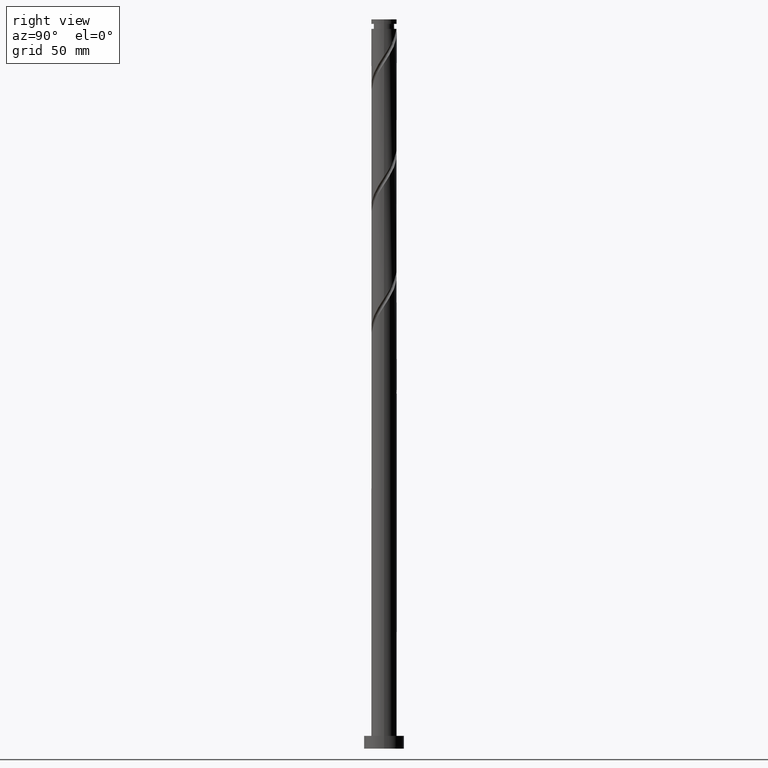
[diagram: clean part render]
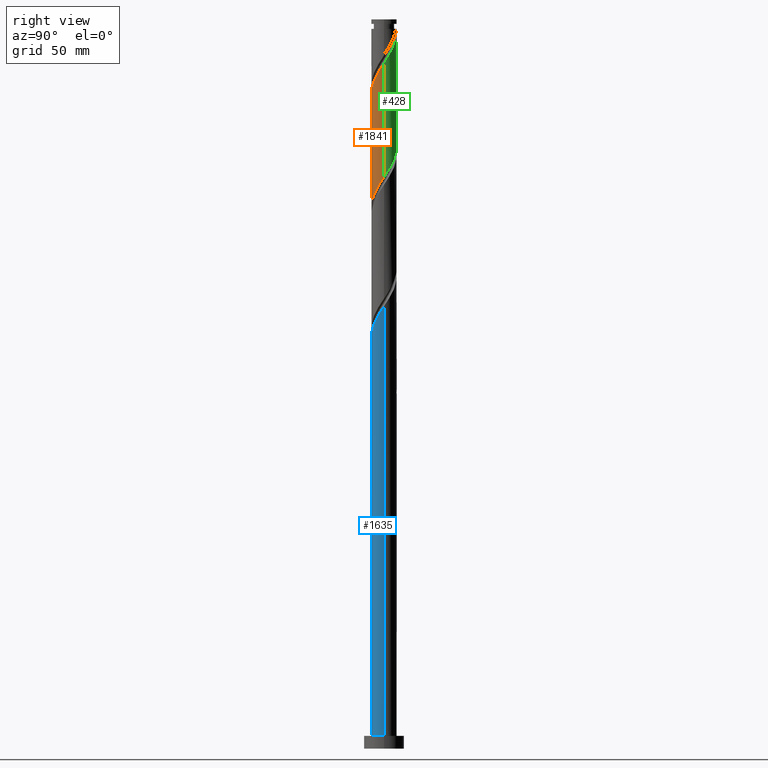
[diagram: same view with three faces highlighted in distinct colors, each labeled with its STEP entity id]
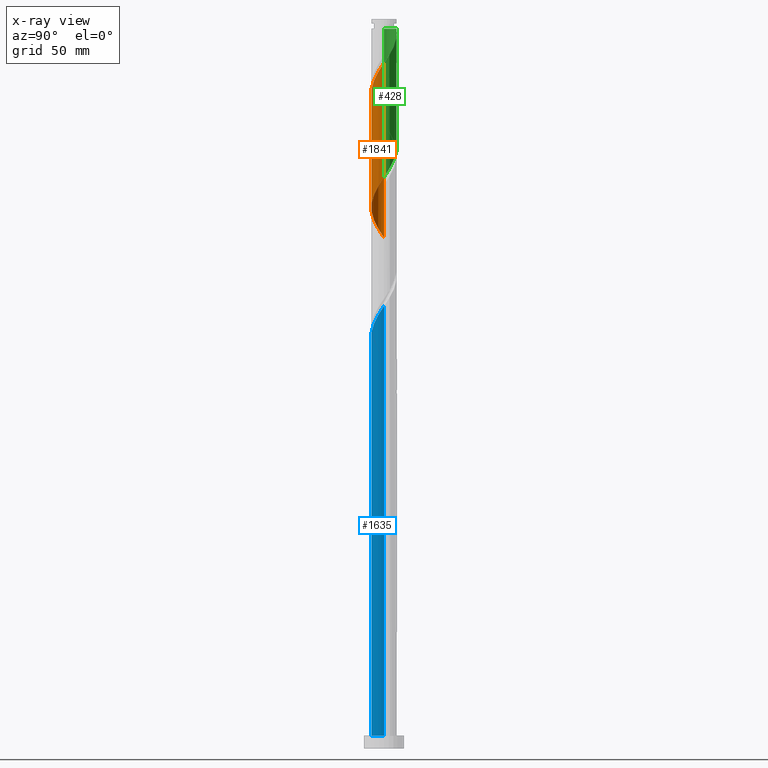
[diagram: x-ray of the same camera — body ghosted, the three highlighted faces saturated]
A machine part, right view with three faces highlighted in distinct colors.
The next image is the same camera in x-ray (body ghosted, the three faces saturated) — at least one of them is partly hidden behind the body in this view.
Their STEP definitions:

[orange] entity #1841 — the highlighted cylindrical surface (edge-blend (fillet) strip) has radius 7 mm, axis along (-0, -0, -1).
#34 =( BOUNDED_CURVE ( )  B_SPLINE_CURVE ( 2, ( #1617, #46, #814, #233, #854, #394, #703, #678, #1754, #1934, #1152, #1771, #1002, #1425, #1886, #1435, #1625, #1282, #655, #1262, #371, #350, #956, #1579, #667, #1271, #1911, #1899, #1464, #1475, #1955, #1791, #263 ),
 .UNSPECIFIED., .F., .T. ) 
 B_SPLINE_CURVE_WITH_KNOTS ( ( 3, 2, 2, 2, 2, 2, 2, 2, 2, 2, 2, 2, 2, 2, 2, 2, 3 ),
 ( 0.5545286012773116280, 0.5583333333333333481, 0.5666666666666666519, 0.5749999999999999556, 0.5833333333333333703, 0.5916666666666666741, 0.5999999999999999778, 0.6083333333333332815, 0.6166666666666666963, 0.6250000000000000000, 0.6333333333333333037, 0.6416666666666667185, 0.6500000000000000222, 0.6583333333333333259, 0.6666666666666666297, 0.6750000000000000444, 0.6795286012773112949 ),
 .UNSPECIFIED. ) 
 CURVE ( )  GEOMETRIC_REPRESENTATION_ITEM ( )  RATIONAL_B_SPLINE_CURVE ( ( 0.9066196499552172661, 0.9068171577856301013, 0.9090909090909288226, 0.9041108139711772074, 0.9090909090909288226, 0.9041108139711772074, 0.9090909090909288226, 0.9041108139711772074, 0.9090909090909288226, 0.9041108139711772074, 0.9090909090909288226, 0.9041108139711772074, 0.9090909090909288226, 0.9041108139711772074, 0.9090909090909288226, 0.9041108139711772074, 0.9090909090909288226, 0.9041108139711772074, 0.9090909090909288226, 0.9041108139711772074, 0.9090909090909288226, 0.9041108139711772074, 0.9090909090909288226, 0.9041108139711772074, 0.9090909090909288226, 0.9041108139711772074, 0.9090909090909288226, 0.9041108139711772074, 0.9090909090909288226, 0.9041108139711772074, 0.9090909090909288226, 0.9063845652764761507, 0.9066196499552172661 ) ) 
 REPRESENTATION_ITEM ( '' )  );
#46 = CARTESIAN_POINT ( 'NONE',  ( 6.999999999999999112, -0.3349079950072654799, 313.0497907622954017 ) ) ;
#57 = CARTESIAN_POINT ( 'NONE',  ( -7.000000000000000888, 0.000000000000000000, 400.0000000000000000 ) ) ;
#89 = LINE ( 'NONE', #57, #1718 ) ;
#97 = CARTESIAN_POINT ( 'NONE',  ( 7.000000000000012434, -0.3988161621250277955, 375.3685281580985702 ) ) ;
#118 = EDGE_CURVE ( 'NONE', #255, #1946, #89, .T. ) ;
#126 = CARTESIAN_POINT ( 'NONE',  ( 5.159153274858738314, -4.731082062965566770, 368.0995627110045803 ) ) ;
#153 = CARTESIAN_POINT ( 'NONE',  ( -6.968026513106292619, -0.6682862505303550638, 343.6551182665601232 ) ) ;
#180 = DIRECTION ( 'NONE',  ( -0.000000000000000000, -0.000000000000000000, -1.000000000000000000 ) ) ;
#233 = CARTESIAN_POINT ( 'NONE',  ( 6.897786797805721903, -1.400655348501352204, 311.4328960443379515 ) ) ;
#255 = VERTEX_POINT ( 'NONE', #1351 ) ;
#263 = CARTESIAN_POINT ( 'NONE',  ( -7.000000000000002665, 9.178327068288536215E-15, 280.2250059545260683 ) ) ;
#297 = CARTESIAN_POINT ( 'NONE',  ( -3.574630488033860853, -6.063275928678102389, 353.6551182665601800 ) ) ;
#348 = EDGE_CURVE ( 'NONE', #1209, #1946, #34, .T. ) ;
#350 = CARTESIAN_POINT ( 'NONE',  ( -3.463635740372986049, -6.127358776118730255, 291.4328960443378378 ) ) ;
#371 = CARTESIAN_POINT ( 'NONE',  ( -2.788816603122402427, -6.420475212486133287, 292.5440071554490373 ) ) ;
#394 = CARTESIAN_POINT ( 'NONE',  ( 6.455840984887133871, -2.804178184623777437, 309.2106738221157798 ) ) ;
#420 = CARTESIAN_POINT ( 'NONE',  ( -5.244443063986621745, -4.636358155772994927, 350.3217849332267519 ) ) ;
#431 = CARTESIAN_POINT ( 'NONE',  ( 6.030060668729772644, -3.555048288200653328, 370.3217849332268088 ) ) ;
#447 = CARTESIAN_POINT ( 'NONE',  ( -5.731743942366925637, -4.085144978138299798, 349.2106738221157229 ) ) ;
#459 = CARTESIAN_POINT ( 'NONE',  ( -0.06373179489726249480, -6.999709869581691279, 359.2106738221157798 ) ) ;
#488 = DIRECTION ( 'NONE',  ( -0.000000000000000000, -0.000000000000000000, -1.000000000000000000 ) ) ;
#547 = CARTESIAN_POINT ( 'NONE',  ( 7.000000000000012434, -1.524738372907857357E-15, 375.9741194674830922 ) ) ;
#558 = EDGE_CURVE ( 'NONE', #1745, #1209, #673, .T. ) ;
#580 = CARTESIAN_POINT ( 'NONE',  ( -6.897786797805730785, -1.400655348501351316, 344.7662293776713227 ) ) ;
#592 = CARTESIAN_POINT ( 'NONE',  ( 6.403711300393656991, -2.921263373008176512, 371.4328960443378946 ) ) ;
#609 = CARTESIAN_POINT ( 'NONE',  ( -2.235890285154152224, -6.673986271039353824, 355.8773404887822949 ) ) ;
#655 = CARTESIAN_POINT ( 'NONE',  ( -1.392982411949273525, -6.859999999999999432, 294.7662293776712659 ) ) ;
#667 = CARTESIAN_POINT ( 'NONE',  ( -5.159153274858732097, -4.731082062965556112, 288.0995627110045803 ) ) ;
#673 = LINE ( 'NONE', #1255, #1081 ) ;
#678 = CARTESIAN_POINT ( 'NONE',  ( 5.731743942366910538, -4.085144978138298910, 306.9884515998934376 ) ) ;
#679 = ORIENTED_EDGE ( 'NONE', *, *, #118, .T. ) ;
#703 = CARTESIAN_POINT ( 'NONE',  ( 6.093792463627021760, -3.444661581381036175, 308.0995627110046371 ) ) ;
#712 = ORIENTED_EDGE ( 'NONE', *, *, #749, .F. ) ;
#717 = CARTESIAN_POINT ( 'NONE',  ( -7.000000000000002665, 9.178327068288536215E-15, 280.2250059545260683 ) ) ;
#739 = ORIENTED_EDGE ( 'NONE', *, *, #348, .F. ) ;
#743 = CARTESIAN_POINT ( 'NONE',  ( 5.656410037065890961, -4.188833203393128812, 369.2106738221157229 ) ) ;
#749 = EDGE_CURVE ( 'NONE', #255, #1745, #1878, .T. ) ;
#814 = CARTESIAN_POINT ( 'NONE',  ( 6.968026513106281961, -0.6682862505303600598, 312.5440071554491510 ) ) ;
#854 = CARTESIAN_POINT ( 'NONE',  ( 6.676813891346426999, -2.102416766562567485, 310.3217849332268656 ) ) ;
#903 = CARTESIAN_POINT ( 'NONE',  ( -2.905260386594006761, -6.368631099858728994, 354.7662293776713227 ) ) ;
#937 = FACE_OUTER_BOUND ( 'NONE', #1069, .T. ) ;
#956 = CARTESIAN_POINT ( 'NONE',  ( -4.062766126512282305, -5.700344849328362606, 290.3217849332268088 ) ) ;
#1002 = CARTESIAN_POINT ( 'NONE',  ( 2.905260386593998323, -6.368631099858720113, 301.4328960443380083 ) ) ;
#1017 = CARTESIAN_POINT ( 'NONE',  ( 2.113997465871811698, -6.713591648853546090, 362.5440071554491510 ) ) ;
#1054 = CARTESIAN_POINT ( 'NONE',  ( -4.165886336820090463, -5.625423631042894890, 352.5440071554490942 ) ) ;
#1055 = AXIS2_PLACEMENT_3D ( 'NONE', #1717, #180, #1618 ) ;
#1069 = EDGE_LOOP ( 'NONE', ( #1772, #712, #679, #739 ) ) ;
#1081 = VECTOR ( 'NONE', #488, 1000.000000000000000 ) ;
#1152 = CARTESIAN_POINT ( 'NONE',  ( 4.165886336820081581, -5.625423631042891337, 303.6551182665601800 ) ) ;
#1188 = CARTESIAN_POINT ( 'NONE',  ( -6.093792463627035083, -3.444661581381038395, 348.0995627110045803 ) ) ;
#1209 = VERTEX_POINT ( 'NONE', #1576 ) ;
#1213 = CARTESIAN_POINT ( 'NONE',  ( -1.517660616487702452, -6.833498829528129370, 356.9884515998934944 ) ) ;
#1255 = CARTESIAN_POINT ( 'NONE',  ( 7.000000000000000888, 8.572527594031474176E-16, 400.0000000000000000 ) ) ;
#1262 = CARTESIAN_POINT ( 'NONE',  ( -2.113997465871814363, -6.713591648853533655, 293.6551182665601232 ) ) ;
#1271 = CARTESIAN_POINT ( 'NONE',  ( -5.656410037065885632, -4.188833203393120819, 286.9884515998935512 ) ) ;
#1282 = CARTESIAN_POINT ( 'NONE',  ( -0.6719673580267349067, -7.006408351146466984, 295.8773404887823517 ) ) ;
#1307 = CARTESIAN_POINT ( 'NONE',  ( 6.871139651478132215, -1.526020315445858699, 373.6551182665601800 ) ) ;
#1339 = CARTESIAN_POINT ( 'NONE',  ( -4.757142185606320517, -5.187571333407690055, 351.4328960443379515 ) ) ;
#1351 = CARTESIAN_POINT ( 'NONE',  ( -7.000000000000009770, -9.268017560812467488E-16, 342.6407861341497778 ) ) ;
#1357 = CARTESIAN_POINT ( 'NONE',  ( -7.000000000000009770, -9.268017560812467488E-16, 342.6407861341497778 ) ) ;
#1364 = CARTESIAN_POINT ( 'NONE',  ( 7.000000000000012434, -1.524738372907857357E-15, 375.9741194674830922 ) ) ;
#1367 = CARTESIAN_POINT ( 'NONE',  ( -6.676813891346439434, -2.102416766562563044, 345.8773404887824086 ) ) ;
#1423 = DIRECTION ( 'NONE',  ( -0.000000000000000000, -0.000000000000000000, -1.000000000000000000 ) ) ;
#1425 = CARTESIAN_POINT ( 'NONE',  ( 2.235890285154144230, -6.673986271039347606, 300.3217849332268656 ) ) ;
#1435 = CARTESIAN_POINT ( 'NONE',  ( 0.7994309478212480169, -6.993011388016896035, 298.0995627110045803 ) ) ;
#1464 = CARTESIAN_POINT ( 'NONE',  ( -6.637425475935885721, -2.223641844227008946, 283.6551182665601800 ) ) ;
#1468 = CARTESIAN_POINT ( 'NONE',  ( 3.463635740372989602, -6.127358776118742689, 364.7662293776712090 ) ) ;
#1475 = CARTESIAN_POINT ( 'NONE',  ( -6.871139651478124222, -1.526020315445849374, 282.5440071554490942 ) ) ;
#1481 = CARTESIAN_POINT ( 'NONE',  ( 6.954702939942492890, -0.7950515814432469464, 374.7662293776712659 ) ) ;
#1557 = CYLINDRICAL_SURFACE ( 'NONE', #1055, 7.000000000000000888 ) ;
#1576 = CARTESIAN_POINT ( 'NONE',  ( 7.000000000000000888, 7.384517217808689599E-15, 313.5583392878594395 ) ) ;
#1579 = CARTESIAN_POINT ( 'NONE',  ( -4.661896512651579449, -5.273330922537993182, 289.2106738221156661 ) ) ;
#1617 = CARTESIAN_POINT ( 'NONE',  ( 7.000000000000000888, 7.384517217808689599E-15, 313.5583392878594395 ) ) ;
#1618 = DIRECTION ( 'NONE',  ( -1.000000000000000000, 0.000000000000000000, 0.000000000000000000 ) ) ;
#1625 = CARTESIAN_POINT ( 'NONE',  ( 0.06373179489725674940, -6.999709869581680621, 296.9884515998934944 ) ) ;
#1640 = CARTESIAN_POINT ( 'NONE',  ( 4.661896512651583002, -5.273330922538004728, 366.9884515998935512 ) ) ;
#1652 = CARTESIAN_POINT ( 'NONE',  ( 2.788816603122401538, -6.420475212486143946, 363.6551182665601800 ) ) ;
#1684 = CARTESIAN_POINT ( 'NONE',  ( 0.6719673580267300217, -7.006408351146476754, 360.3217849332268656 ) ) ;
#1717 = CARTESIAN_POINT ( 'NONE',  ( 0.000000000000000000, 0.000000000000000000, 400.0000000000000000 ) ) ;
#1718 = VECTOR ( 'NONE', #1423, 1000.000000000000000 ) ;
#1745 = VERTEX_POINT ( 'NONE', #1364 ) ;
#1754 = CARTESIAN_POINT ( 'NONE',  ( 5.244443063986611087, -4.636358155772994039, 305.8773404887824086 ) ) ;
#1771 = CARTESIAN_POINT ( 'NONE',  ( 3.574630488033851972, -6.063275928678096172, 302.5440071554491510 ) ) ;
#1772 = ORIENTED_EDGE ( 'NONE', *, *, #558, .F. ) ;
#1791 = CARTESIAN_POINT ( 'NONE',  ( -7.000000000000000000, -0.3988161621250425615, 280.8305972639106471 ) ) ;
#1798 = CARTESIAN_POINT ( 'NONE',  ( -7.000000000000008882, -0.3349079950072593181, 343.1493346597139293 ) ) ;
#1810 = CARTESIAN_POINT ( 'NONE',  ( 4.062766126512283194, -5.700344849328375041, 365.8773404887822949 ) ) ;
#1837 = CARTESIAN_POINT ( 'NONE',  ( -0.7994309478212519027, -6.993011388016906693, 358.0995627110046371 ) ) ;
#1841 = ADVANCED_FACE ( 'NONE', ( #937 ), #1557, .T. ) ;
#1878 =( BOUNDED_CURVE ( )  B_SPLINE_CURVE ( 2, ( #1357, #1798, #153, #580, #1367, #1998, #1188, #447, #420, #1339, #1054, #297, #903, #609, #1213, #1837, #459, #1684, #1939, #1017, #1652, #1468, #1810, #1640, #126, #743, #431, #592, #1989, #1307, #1481, #97, #547 ),
 .UNSPECIFIED., .F., .T. ) 
 B_SPLINE_CURVE_WITH_KNOTS ( ( 3, 2, 2, 2, 2, 2, 2, 2, 2, 2, 2, 2, 2, 2, 2, 2, 3 ),
 ( 0.5545286012773116280, 0.5583333333333333481, 0.5666666666666666519, 0.5749999999999999556, 0.5833333333333332593, 0.5916666666666666741, 0.5999999999999999778, 0.6083333333333333925, 0.6166666666666666963, 0.6250000000000000000, 0.6333333333333333037, 0.6416666666666666075, 0.6500000000000000222, 0.6583333333333333259, 0.6666666666666667407, 0.6750000000000000444, 0.6795286012773115170 ),
 .UNSPECIFIED. ) 
 CURVE ( )  GEOMETRIC_REPRESENTATION_ITEM ( )  RATIONAL_B_SPLINE_CURVE ( ( 0.9066196499552231503, 0.9068171577856358745, 0.9090909090909347068, 0.9041108139711830916, 0.9090909090909347068, 0.9041108139711830916, 0.9090909090909347068, 0.9041108139711830916, 0.9090909090909347068, 0.9041108139711830916, 0.9090909090909347068, 0.9041108139711830916, 0.9090909090909347068, 0.9041108139711830916, 0.9090909090909347068, 0.9041108139711830916, 0.9090909090909347068, 0.9041108139711830916, 0.9090909090909347068, 0.9041108139711830916, 0.9090909090909347068, 0.9041108139711830916, 0.9090909090909347068, 0.9041108139711830916, 0.9090909090909347068, 0.9041108139711830916, 0.9090909090909347068, 0.9041108139711830916, 0.9090909090909347068, 0.9041108139711830916, 0.9090909090909347068, 0.9063845652764819238, 0.9066196499552231503 ) ) 
 REPRESENTATION_ITEM ( '' )  );
#1886 = CARTESIAN_POINT ( 'NONE',  ( 1.517660616487694236, -6.833498829528121377, 299.2106738221156661 ) ) ;
#1899 = CARTESIAN_POINT ( 'NONE',  ( -6.403711300393647221, -2.921263373008168962, 284.7662293776712659 ) ) ;
#1911 = CARTESIAN_POINT ( 'NONE',  ( -6.030060668729767315, -3.555048288200643114, 285.8773404887824086 ) ) ;
#1934 = CARTESIAN_POINT ( 'NONE',  ( 4.757142185606310747, -5.187571333407684726, 304.7662293776712090 ) ) ;
#1939 = CARTESIAN_POINT ( 'NONE',  ( 1.392982411949272858, -6.860000000000010090, 361.4328960443380083 ) ) ;
#1946 = VERTEX_POINT ( 'NONE', #717 ) ;
#1955 = CARTESIAN_POINT ( 'NONE',  ( -6.954702939942481343, -0.7950515814432431716, 281.4328960443378946 ) ) ;
#1989 = CARTESIAN_POINT ( 'NONE',  ( 6.637425475935893715, -2.223641844227016939, 372.5440071554490942 ) ) ;
#1998 = CARTESIAN_POINT ( 'NONE',  ( -6.455840984887144529, -2.804178184623776104, 346.9884515998934376 ) ) ;

[blue] entity #1635 — the highlighted cylindrical surface (edge-blend (fillet) strip) has radius 7 mm, axis along (-0, -0, -1).
#21 = DIRECTION ( 'NONE',  ( -0.000000000000000000, -0.000000000000000000, -1.000000000000000000 ) ) ;
#52 = CARTESIAN_POINT ( 'NONE',  ( -6.676813891346439434, -2.102416766562563044, 212.5440071554489805 ) ) ;
#109 = CARTESIAN_POINT ( 'NONE',  ( 1.392982411949272858, -6.860000000000010090, 228.0995627110046087 ) ) ;
#172 = CARTESIAN_POINT ( 'NONE',  ( 6.954702939942492890, -0.7950515814432469464, 241.4328960443379515 ) ) ;
#224 = AXIS2_PLACEMENT_3D ( 'NONE', #1484, #1613, #1930 ) ;
#225 = CARTESIAN_POINT ( 'NONE',  ( 7.000000000000000888, 8.572527594031474176E-16, 7.000000000000000000 ) ) ;
#226 = CARTESIAN_POINT ( 'NONE',  ( -4.165886336820090463, -5.625423631042894890, 219.2106738221157229 ) ) ;
#275 = ORIENTED_EDGE ( 'NONE', *, *, #829, .F. ) ;
#281 = DIRECTION ( 'NONE',  ( -0.000000000000000000, -0.000000000000000000, -1.000000000000000000 ) ) ;
#288 = CARTESIAN_POINT ( 'NONE',  ( -0.06373179489726249480, -6.999709869581691279, 225.8773404887823801 ) ) ;
#292 = CARTESIAN_POINT ( 'NONE',  ( 6.637425475935893715, -2.223641844227016939, 239.2106738221157229 ) ) ;
#307 = CARTESIAN_POINT ( 'NONE',  ( -1.517660616487702452, -6.833498829528129370, 223.6551182665601516 ) ) ;
#315 = CARTESIAN_POINT ( 'NONE',  ( 6.403711300393656991, -2.921263373008176512, 238.0995627110045803 ) ) ;
#398 = CARTESIAN_POINT ( 'NONE',  ( 7.000000000000000888, 8.572527594031474176E-16, 400.0000000000000000 ) ) ;
#449 = EDGE_CURVE ( 'NONE', #604, #1645, #1869, .T. ) ;
#450 =( BOUNDED_CURVE ( )  B_SPLINE_CURVE ( 2, ( #1915, #1891, #1110, #697, #52, #529, #1760, #1137, #985, #1608, #226, #1298, #1146, #1065, #307, #904, #288, #914, #109, #1326, #1964, #1340, #570, #1976, #882, #1197, #1822, #315, #292, #1821, #172, #1848, #637 ),
 .UNSPECIFIED., .F., .T. ) 
 B_SPLINE_CURVE_WITH_KNOTS ( ( 3, 2, 2, 2, 2, 2, 2, 2, 2, 2, 2, 2, 2, 2, 2, 2, 3 ),
 ( 0.05452860127731151696, 0.05833333333333334814, 0.06666666666666665186, 0.07499999999999995559, 0.08333333333333337034, 0.09166666666666667407, 0.09999999999999997780, 0.1083333333333332815, 0.1166666666666666963, 0.1250000000000000000, 0.1333333333333333037, 0.1416666666666667185, 0.1500000000000000222, 0.1583333333333333259, 0.1666666666666666297, 0.1750000000000000444, 0.1795286012773115725 ),
 .UNSPECIFIED. ) 
 CURVE ( )  GEOMETRIC_REPRESENTATION_ITEM ( )  RATIONAL_B_SPLINE_CURVE ( ( 0.9066196499552231503, 0.9068171577856358745, 0.9090909090909347068, 0.9041108139711830916, 0.9090909090909347068, 0.9041108139711830916, 0.9090909090909347068, 0.9041108139711830916, 0.9090909090909347068, 0.9041108139711830916, 0.9090909090909347068, 0.9041108139711830916, 0.9090909090909347068, 0.9041108139711830916, 0.9090909090909347068, 0.9041108139711830916, 0.9090909090909347068, 0.9041108139711830916, 0.9090909090909347068, 0.9041108139711830916, 0.9090909090909347068, 0.9041108139711830916, 0.9090909090909347068, 0.9041108139711830916, 0.9090909090909347068, 0.9041108139711830916, 0.9090909090909347068, 0.9041108139711830916, 0.9090909090909347068, 0.9041108139711830916, 0.9090909090909347068, 0.9063845652764819238, 0.9066196499552231503 ) ) 
 REPRESENTATION_ITEM ( '' )  );
#480 = AXIS2_PLACEMENT_3D ( 'NONE', #619, #281, #1799 ) ;
#529 = CARTESIAN_POINT ( 'NONE',  ( -6.455840984887144529, -2.804178184623776104, 213.6551182665601232 ) ) ;
#570 = CARTESIAN_POINT ( 'NONE',  ( 4.062766126512283194, -5.700344849328375041, 232.5440071554490373 ) ) ;
#575 = ORIENTED_EDGE ( 'NONE', *, *, #449, .T. ) ;
#604 = VERTEX_POINT ( 'NONE', #941 ) ;
#619 = CARTESIAN_POINT ( 'NONE',  ( 0.000000000000000000, 0.000000000000000000, 400.0000000000000000 ) ) ;
#637 = CARTESIAN_POINT ( 'NONE',  ( 7.000000000000012434, 3.737103855166317141E-15, 242.6407861341498062 ) ) ;
#697 = CARTESIAN_POINT ( 'NONE',  ( -6.897786797805730785, -1.400655348501351316, 211.4328960443379515 ) ) ;
#763 = FACE_OUTER_BOUND ( 'NONE', #1183, .T. ) ;
#829 = EDGE_CURVE ( 'NONE', #1842, #994, #1333, .T. ) ;
#882 = CARTESIAN_POINT ( 'NONE',  ( 5.159153274858738314, -4.731082062965566770, 234.7662293776712090 ) ) ;
#904 = CARTESIAN_POINT ( 'NONE',  ( -0.7994309478212519027, -6.993011388016906693, 224.7662293776712943 ) ) ;
#914 = CARTESIAN_POINT ( 'NONE',  ( 0.6719673580267300217, -7.006408351146476754, 226.9884515998934944 ) ) ;
#941 = CARTESIAN_POINT ( 'NONE',  ( -7.000000000000010658, -6.158747153314091299E-15, 209.3074528008164350 ) ) ;
#985 = CARTESIAN_POINT ( 'NONE',  ( -5.244443063986621745, -4.636358155772994927, 216.9884515998934944 ) ) ;
#994 = VERTEX_POINT ( 'NONE', #225 ) ;
#1065 = CARTESIAN_POINT ( 'NONE',  ( -2.235890285154152224, -6.673986271039353824, 222.5440071554490657 ) ) ;
#1110 = CARTESIAN_POINT ( 'NONE',  ( -6.968026513106292619, -0.6682862505303550638, 210.3217849332267804 ) ) ;
#1137 = CARTESIAN_POINT ( 'NONE',  ( -5.731743942366925637, -4.085144978138299798, 215.8773404887824370 ) ) ;
#1146 = CARTESIAN_POINT ( 'NONE',  ( -2.905260386594006761, -6.368631099858728994, 221.4328960443379515 ) ) ;
#1183 = EDGE_LOOP ( 'NONE', ( #275, #1580, #575, #1993 ) ) ;
#1197 = CARTESIAN_POINT ( 'NONE',  ( 5.656410037065890961, -4.188833203393128812, 235.8773404887824086 ) ) ;
#1298 = CARTESIAN_POINT ( 'NONE',  ( -3.574630488033860853, -6.063275928678102389, 220.3217849332268088 ) ) ;
#1313 = VECTOR ( 'NONE', #1648, 1000.000000000000000 ) ;
#1326 = CARTESIAN_POINT ( 'NONE',  ( 2.113997465871811698, -6.713591648853546090, 229.2106738221157229 ) ) ;
#1327 = EDGE_CURVE ( 'NONE', #604, #1842, #450, .T. ) ;
#1333 = LINE ( 'NONE', #398, #1313 ) ;
#1340 = CARTESIAN_POINT ( 'NONE',  ( 3.463635740372989602, -6.127358776118742689, 231.4328960443378662 ) ) ;
#1368 = CYLINDRICAL_SURFACE ( 'NONE', #480, 7.000000000000000888 ) ;
#1444 = CIRCLE ( 'NONE', #224, 7.000000000000000888 ) ;
#1480 = EDGE_CURVE ( 'NONE', #1645, #994, #1444, .T. ) ;
#1484 = CARTESIAN_POINT ( 'NONE',  ( 0.000000000000000000, 0.000000000000000000, 7.000000000000000000 ) ) ;
#1494 = CARTESIAN_POINT ( 'NONE',  ( -7.000000000000000888, 0.000000000000000000, 7.000000000000000000 ) ) ;
#1580 = ORIENTED_EDGE ( 'NONE', *, *, #1327, .F. ) ;
#1608 = CARTESIAN_POINT ( 'NONE',  ( -4.757142185606320517, -5.187571333407690055, 218.0995627110046371 ) ) ;
#1613 = DIRECTION ( 'NONE',  ( 0.000000000000000000, 0.000000000000000000, 1.000000000000000000 ) ) ;
#1635 = ADVANCED_FACE ( 'NONE', ( #763 ), #1368, .T. ) ;
#1645 = VERTEX_POINT ( 'NONE', #1494 ) ;
#1648 = DIRECTION ( 'NONE',  ( -0.000000000000000000, -0.000000000000000000, -1.000000000000000000 ) ) ;
#1703 = CARTESIAN_POINT ( 'NONE',  ( -7.000000000000000888, 0.000000000000000000, 400.0000000000000000 ) ) ;
#1760 = CARTESIAN_POINT ( 'NONE',  ( -6.093792463627035083, -3.444661581381038395, 214.7662293776712659 ) ) ;
#1799 = DIRECTION ( 'NONE',  ( -1.000000000000000000, 0.000000000000000000, 0.000000000000000000 ) ) ;
#1821 = CARTESIAN_POINT ( 'NONE',  ( 6.871139651478132215, -1.526020315445858699, 240.3217849332268088 ) ) ;
#1822 = CARTESIAN_POINT ( 'NONE',  ( 6.030060668729772644, -3.555048288200653328, 236.9884515998934944 ) ) ;
#1842 = VERTEX_POINT ( 'NONE', #1918 ) ;
#1848 = CARTESIAN_POINT ( 'NONE',  ( 7.000000000000012434, -0.3988161621250228550, 242.0351948247652558 ) ) ;
#1869 = LINE ( 'NONE', #1703, #1887 ) ;
#1887 = VECTOR ( 'NONE', #21, 1000.000000000000000 ) ;
#1891 = CARTESIAN_POINT ( 'NONE',  ( -7.000000000000008882, -0.3349079950072495482, 209.8160013263804728 ) ) ;
#1915 = CARTESIAN_POINT ( 'NONE',  ( -7.000000000000010658, -6.158747153314091299E-15, 209.3074528008164350 ) ) ;
#1918 = CARTESIAN_POINT ( 'NONE',  ( 7.000000000000012434, 3.737103855166317141E-15, 242.6407861341498062 ) ) ;
#1930 = DIRECTION ( 'NONE',  ( 1.000000000000000000, 0.000000000000000000, 0.000000000000000000 ) ) ;
#1964 = CARTESIAN_POINT ( 'NONE',  ( 2.788816603122401538, -6.420475212486143946, 230.3217849332268372 ) ) ;
#1976 = CARTESIAN_POINT ( 'NONE',  ( 4.661896512651583002, -5.273330922538004728, 233.6551182665601800 ) ) ;
#1993 = ORIENTED_EDGE ( 'NONE', *, *, #1480, .T. ) ;

[green] entity #428 — the highlighted cylindrical surface (edge-blend (fillet) strip) has radius 7 mm, axis along (-0, -0, -1).
#7 = CARTESIAN_POINT ( 'NONE',  ( -6.093792463627023537, 3.444661581381034843, 341.4328960443378946 ) ) ;
#24 = CARTESIAN_POINT ( 'NONE',  ( 5.159153274858732097, 4.731082062965556112, 321.4328960443378946 ) ) ;
#26 = EDGE_CURVE ( 'NONE', #301, #1209, #1683, .T. ) ;
#29 = VECTOR ( 'NONE', #183, 1000.000000000000000 ) ;
#66 = CIRCLE ( 'NONE', #1980, 6.999999999999965361 ) ;
#92 = EDGE_LOOP ( 'NONE', ( #1465, #969, #1059, #1014, #855 ) ) ;
#98 = CARTESIAN_POINT ( 'NONE',  ( 7.000000000000012434, 0.3349079950072464396, 376.4826679930471300 ) ) ;
#131 = CARTESIAN_POINT ( 'NONE',  ( 0.000000000000000000, 0.000000000000000000, 400.0000000000000000 ) ) ;
#164 = DIRECTION ( 'NONE',  ( -1.000000000000000000, 0.000000000000000000, 0.000000000000000000 ) ) ;
#167 = CARTESIAN_POINT ( 'NONE',  ( 6.954702939942481343, 0.7950515814432423944, 314.7662293776712090 ) ) ;
#177 = CARTESIAN_POINT ( 'NONE',  ( -3.574630488033854636, 6.063275928678096172, 335.8773404887823517 ) ) ;
#183 = DIRECTION ( 'NONE',  ( -0.000000000000000000, -0.000000000000000000, -1.000000000000000000 ) ) ;
#272 = CARTESIAN_POINT ( 'NONE',  ( -6.999999999999965361, 0.000000000000000000, 394.7662293776712659 ) ) ;
#301 = VERTEX_POINT ( 'NONE', #1668 ) ;
#310 = CARTESIAN_POINT ( 'NONE',  ( -5.731743942366914091, 4.085144978138296246, 340.3217849332267519 ) ) ;
#318 = VERTEX_POINT ( 'NONE', #737 ) ;
#328 = CARTESIAN_POINT ( 'NONE',  ( -4.757142185606312523, 5.187571333407684726, 338.0995627110046939 ) ) ;
#337 = CARTESIAN_POINT ( 'NONE',  ( 4.757142185606320517, 5.187571333407690055, 384.7662293776712659 ) ) ;
#347 = CARTESIAN_POINT ( 'NONE',  ( 2.905260386594007205, 6.368631099858728994, 388.0995627110045234 ) ) ;
#379 = CARTESIAN_POINT ( 'NONE',  ( -1.392982411949309940, 6.859999999999956799, 394.7662293776712659 ) ) ;
#403 = CARTESIAN_POINT ( 'NONE',  ( 0.000000000000000000, 0.000000000000000000, 394.7662293776712659 ) ) ;
#424 = FACE_OUTER_BOUND ( 'NONE', #92, .T. ) ;
#428 = ADVANCED_FACE ( 'NONE', ( #424 ), #887, .T. ) ;
#455 = CARTESIAN_POINT ( 'NONE',  ( 6.403711300393648109, 2.921263373008168074, 318.0995627110045803 ) ) ;
#462 = CARTESIAN_POINT ( 'NONE',  ( -0.06373179489725845637, 6.999709869581681509, 330.3217849332268656 ) ) ;
#469 = CARTESIAN_POINT ( 'NONE',  ( -5.244443063986611975, 4.636358155772989598, 339.2106738221156661 ) ) ;
#488 = DIRECTION ( 'NONE',  ( -0.000000000000000000, -0.000000000000000000, -1.000000000000000000 ) ) ;
#491 = CARTESIAN_POINT ( 'NONE',  ( 7.000000000000000888, 7.384517217808689599E-15, 313.5583392878594395 ) ) ;
#553 = CARTESIAN_POINT ( 'NONE',  ( 6.093792463627035083, 3.444661581381037951, 381.4328960443380652 ) ) ;
#558 = EDGE_CURVE ( 'NONE', #1745, #1209, #673, .T. ) ;
#559 = CARTESIAN_POINT ( 'NONE',  ( 0.06373179489726354952, 6.999709869581692168, 392.5440071554490373 ) ) ;
#601 = AXIS2_PLACEMENT_3D ( 'NONE', #131, #1243, #164 ) ;
#656 =( BOUNDED_CURVE ( )  B_SPLINE_CURVE ( 2, ( #1469, #98, #1126, #968, #1153, #1969, #553, #1805, #664, #337, #1259, #1727, #347, #1117, #1588, #822, #559, #1471, #379 ),
 .UNSPECIFIED., .F., .T. ) 
 B_SPLINE_CURVE_WITH_KNOTS ( ( 3, 2, 2, 2, 2, 2, 2, 2, 2, 3 ),
 ( 0.6795286012773115170, 0.6833333333333333481, 0.6916666666666666519, 0.6999999999999999556, 0.7083333333333332593, 0.7166666666666666741, 0.7249999999999999778, 0.7333333333333333925, 0.7416666666666666963, 0.7500000000000000000 ),
 .UNSPECIFIED. ) 
 CURVE ( )  GEOMETRIC_REPRESENTATION_ITEM ( )  RATIONAL_B_SPLINE_CURVE ( ( 0.9066196499552231503, 0.9068171577856358745, 0.9090909090909347068, 0.9041108139711830916, 0.9090909090909347068, 0.9041108139711830916, 0.9090909090909347068, 0.9041108139711830916, 0.9090909090909347068, 0.9041108139711830916, 0.9090909090909347068, 0.9041108139711830916, 0.9090909090909347068, 0.9041108139711830916, 0.9090909090909347068, 0.9041108139711830916, 0.9090909090909347068, 0.9041108139711830916, 0.9090909090909347068 ) ) 
 REPRESENTATION_ITEM ( '' )  );
#664 = CARTESIAN_POINT ( 'NONE',  ( 5.244443063986624409, 4.636358155772991374, 383.6551182665602937 ) ) ;
#673 = LINE ( 'NONE', #1255, #1081 ) ;
#715 = EDGE_CURVE ( 'NONE', #1636, #318, #66, .T. ) ;
#737 = CARTESIAN_POINT ( 'NONE',  ( -1.392982411949309940, 6.859999999999956799, 394.7662293776712659 ) ) ;
#744 = DIRECTION ( 'NONE',  ( -0.000000000000000000, -0.000000000000000000, -1.000000000000000000 ) ) ;
#775 = CARTESIAN_POINT ( 'NONE',  ( -6.676813891346427887, 2.102416766562563488, 343.6551182665601800 ) ) ;
#783 = CARTESIAN_POINT ( 'NONE',  ( 5.656410037065887408, 4.188833203393116378, 320.3217849332268088 ) ) ;
#794 = CARTESIAN_POINT ( 'NONE',  ( 0.6719673580267319091, 7.006408351146465208, 329.2106738221157229 ) ) ;
#822 = CARTESIAN_POINT ( 'NONE',  ( 0.7994309478212532349, 6.993011388016906693, 391.4328960443379515 ) ) ;
#855 = ORIENTED_EDGE ( 'NONE', *, *, #715, .T. ) ;
#887 = CYLINDRICAL_SURFACE ( 'NONE', #601, 7.000000000000000888 ) ;
#907 = CARTESIAN_POINT ( 'NONE',  ( 4.661896512651579449, 5.273330922537992294, 322.5440071554490373 ) ) ;
#925 = CARTESIAN_POINT ( 'NONE',  ( 2.788816603122402871, 6.420475212486132399, 325.8773404887823517 ) ) ;
#950 = CARTESIAN_POINT ( 'NONE',  ( -7.000000000000000888, 0.000000000000000000, 400.0000000000000000 ) ) ;
#968 = CARTESIAN_POINT ( 'NONE',  ( 6.897786797805730785, 1.400655348501350206, 378.0995627110046939 ) ) ;
#969 = ORIENTED_EDGE ( 'NONE', *, *, #558, .T. ) ;
#973 = LINE ( 'NONE', #950, #29 ) ;
#1014 = ORIENTED_EDGE ( 'NONE', *, *, #1037, .F. ) ;
#1037 = EDGE_CURVE ( 'NONE', #1636, #301, #973, .T. ) ;
#1059 = ORIENTED_EDGE ( 'NONE', *, *, #26, .F. ) ;
#1076 = CARTESIAN_POINT ( 'NONE',  ( -2.905260386594000099, 6.368631099858720113, 334.7662293776713227 ) ) ;
#1081 = VECTOR ( 'NONE', #488, 1000.000000000000000 ) ;
#1086 = CARTESIAN_POINT ( 'NONE',  ( -6.455840984887133871, 2.804178184623774772, 342.5440071554490373 ) ) ;
#1095 = CARTESIAN_POINT ( 'NONE',  ( 6.637425475935888386, 2.223641844227005393, 316.9884515998934376 ) ) ;
#1117 = CARTESIAN_POINT ( 'NONE',  ( 2.235890285154152668, 6.673986271039353824, 389.2106738221156661 ) ) ;
#1126 = CARTESIAN_POINT ( 'NONE',  ( 6.968026513106293507, 0.6682862505303511780, 376.9884515998936081 ) ) ;
#1153 = CARTESIAN_POINT ( 'NONE',  ( 6.676813891346439434, 2.102416766562560380, 379.2106738221158366 ) ) ;
#1209 = VERTEX_POINT ( 'NONE', #1576 ) ;
#1218 = CARTESIAN_POINT ( 'NONE',  ( -0.7994309478212489051, 6.993011388016896035, 331.4328960443379515 ) ) ;
#1226 = CARTESIAN_POINT ( 'NONE',  ( -4.165886336820082470, 5.625423631042889561, 336.9884515998934944 ) ) ;
#1236 = CARTESIAN_POINT ( 'NONE',  ( -7.000000000000000888, 3.916484840214325626E-15, 346.8916726211926971 ) ) ;
#1243 = DIRECTION ( 'NONE',  ( -0.000000000000000000, -0.000000000000000000, -1.000000000000000000 ) ) ;
#1246 = CARTESIAN_POINT ( 'NONE',  ( 3.463635740372987826, 6.127358776118730255, 324.7662293776712090 ) ) ;
#1255 = CARTESIAN_POINT ( 'NONE',  ( 7.000000000000000888, 8.572527594031474176E-16, 400.0000000000000000 ) ) ;
#1259 = CARTESIAN_POINT ( 'NONE',  ( 4.165886336820090463, 5.625423631042894002, 385.8773404887824086 ) ) ;
#1364 = CARTESIAN_POINT ( 'NONE',  ( 7.000000000000012434, -1.524738372907857357E-15, 375.9741194674830922 ) ) ;
#1399 = CARTESIAN_POINT ( 'NONE',  ( 4.062766126512285858, 5.700344849328359942, 323.6551182665601232 ) ) ;
#1410 = CARTESIAN_POINT ( 'NONE',  ( -2.235890285154146451, 6.673986271039347606, 333.6551182665601232 ) ) ;
#1455 = EDGE_CURVE ( 'NONE', #1745, #318, #656, .T. ) ;
#1465 = ORIENTED_EDGE ( 'NONE', *, *, #1455, .F. ) ;
#1469 = CARTESIAN_POINT ( 'NONE',  ( 7.000000000000012434, -1.524738372907857357E-15, 375.9741194674830922 ) ) ;
#1471 = CARTESIAN_POINT ( 'NONE',  ( -0.6719673580267262469, 7.006408351146477642, 393.6551182665601800 ) ) ;
#1511 = DIRECTION ( 'NONE',  ( -1.000000000000000000, 0.000000000000000000, 0.000000000000000000 ) ) ;
#1523 = CARTESIAN_POINT ( 'NONE',  ( 7.000000000000004441, 0.3988161621250106981, 314.1639305972440184 ) ) ;
#1530 = CARTESIAN_POINT ( 'NONE',  ( -6.968026513106281961, 0.6682862505303576173, 345.8773404887824086 ) ) ;
#1543 = CARTESIAN_POINT ( 'NONE',  ( 6.030060668729769091, 3.555048288200642670, 319.2106738221157229 ) ) ;
#1554 = CARTESIAN_POINT ( 'NONE',  ( -6.999999999999999112, 0.3349079950072595957, 346.3831240956286592 ) ) ;
#1566 = CARTESIAN_POINT ( 'NONE',  ( 1.392982411949274191, 6.859999999999999432, 328.0995627110045803 ) ) ;
#1576 = CARTESIAN_POINT ( 'NONE',  ( 7.000000000000000888, 7.384517217808689599E-15, 313.5583392878594395 ) ) ;
#1588 = CARTESIAN_POINT ( 'NONE',  ( 1.517660616487705783, 6.833498829528128482, 390.3217849332267519 ) ) ;
#1636 = VERTEX_POINT ( 'NONE', #272 ) ;
#1668 = CARTESIAN_POINT ( 'NONE',  ( -7.000000000000000888, 3.916484840214325626E-15, 346.8916726211927539 ) ) ;
#1683 =( BOUNDED_CURVE ( )  B_SPLINE_CURVE ( 2, ( #1236, #1554, #1530, #1859, #775, #1086, #7, #310, #469, #328, #1226, #177, #1076, #1410, #1832, #1218, #462, #794, #1566, #1851, #925, #1246, #1399, #907, #24, #783, #1543, #455, #1095, #1872, #167, #1523, #491 ),
 .UNSPECIFIED., .F., .T. ) 
 B_SPLINE_CURVE_WITH_KNOTS ( ( 3, 2, 2, 2, 2, 2, 2, 2, 2, 2, 2, 2, 2, 2, 2, 2, 3 ),
 ( 0.4295286012773115725, 0.4333333333333333481, 0.4416666666666666519, 0.4500000000000000111, 0.4583333333333333148, 0.4666666666666666741, 0.4749999999999999778, 0.4833333333333333370, 0.4916666666666666408, 0.5000000000000000000, 0.5083333333333333037, 0.5166666666666667185, 0.5250000000000000222, 0.5333333333333333259, 0.5416666666666666297, 0.5500000000000000444, 0.5545286012773116280 ),
 .UNSPECIFIED. ) 
 CURVE ( )  GEOMETRIC_REPRESENTATION_ITEM ( )  RATIONAL_B_SPLINE_CURVE ( ( 0.9066196499552172661, 0.9068171577856301013, 0.9090909090909288226, 0.9041108139711772074, 0.9090909090909288226, 0.9041108139711772074, 0.9090909090909288226, 0.9041108139711772074, 0.9090909090909288226, 0.9041108139711772074, 0.9090909090909288226, 0.9041108139711772074, 0.9090909090909288226, 0.9041108139711772074, 0.9090909090909288226, 0.9041108139711772074, 0.9090909090909288226, 0.9041108139711772074, 0.9090909090909288226, 0.9041108139711772074, 0.9090909090909288226, 0.9041108139711772074, 0.9090909090909288226, 0.9041108139711772074, 0.9090909090909288226, 0.9041108139711772074, 0.9090909090909288226, 0.9041108139711772074, 0.9090909090909288226, 0.9041108139711772074, 0.9090909090909288226, 0.9063845652764759286, 0.9066196499552172661 ) ) 
 REPRESENTATION_ITEM ( '' )  );
#1727 = CARTESIAN_POINT ( 'NONE',  ( 3.574630488033866627, 6.063275928678099724, 386.9884515998935512 ) ) ;
#1745 = VERTEX_POINT ( 'NONE', #1364 ) ;
#1805 = CARTESIAN_POINT ( 'NONE',  ( 5.731743942366926525, 4.085144978138296246, 382.5440071554489805 ) ) ;
#1832 = CARTESIAN_POINT ( 'NONE',  ( -1.517660616487697567, 6.833498829528120488, 332.5440071554491510 ) ) ;
#1851 = CARTESIAN_POINT ( 'NONE',  ( 2.113997465871818804, 6.713591648853531879, 326.9884515998934944 ) ) ;
#1859 = CARTESIAN_POINT ( 'NONE',  ( -6.897786797805721903, 1.400655348501351094, 344.7662293776712659 ) ) ;
#1872 = CARTESIAN_POINT ( 'NONE',  ( 6.871139651478125110, 1.526020315445847153, 315.8773404887824654 ) ) ;
#1969 = CARTESIAN_POINT ( 'NONE',  ( 6.455840984887146305, 2.804178184623772108, 380.3217849332268088 ) ) ;
#1980 = AXIS2_PLACEMENT_3D ( 'NONE', #403, #744, #1511 ) ;